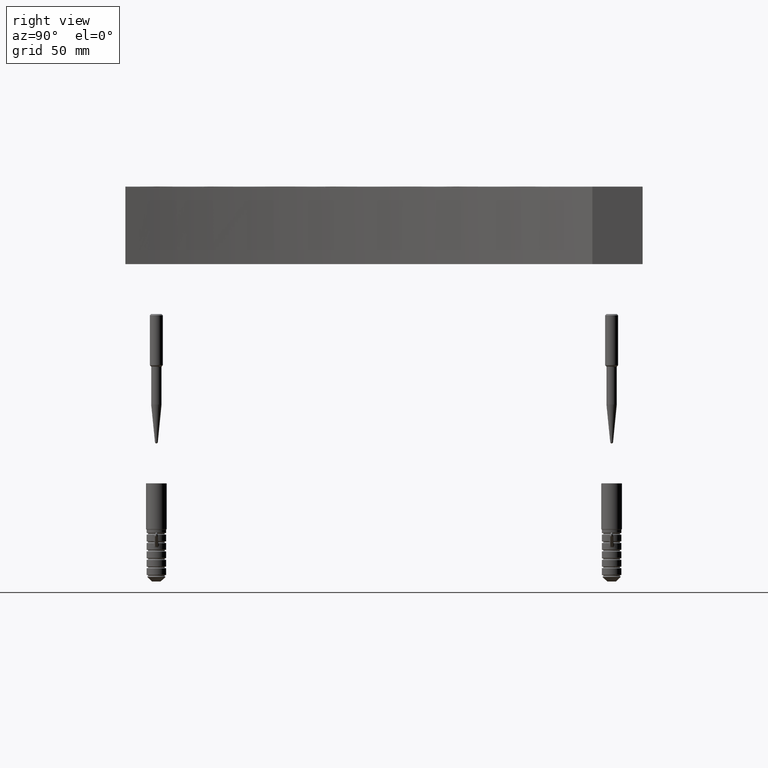
[diagram: clean part render]
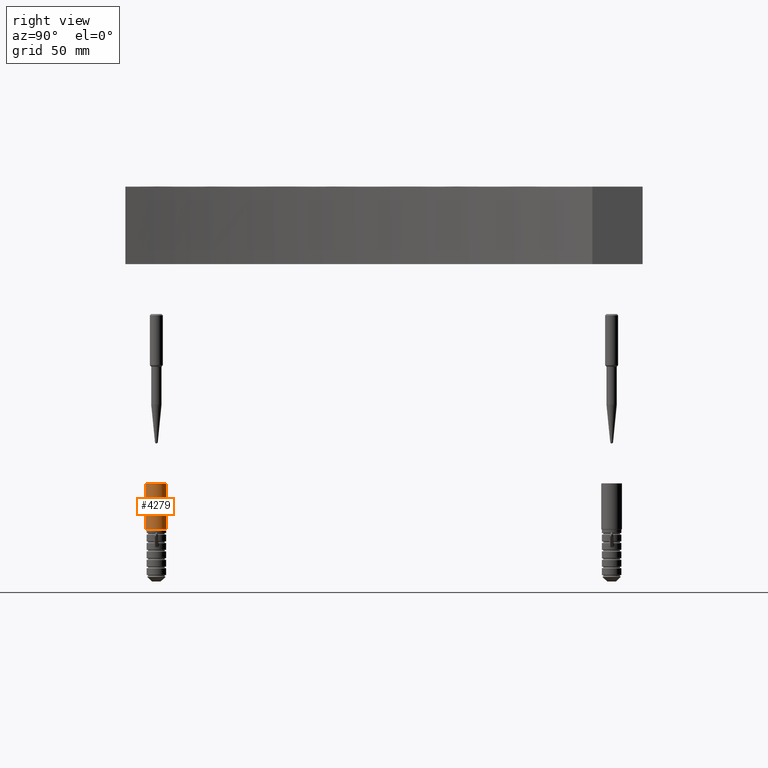
[diagram: same view with one face highlighted and labeled with its STEP entity id]
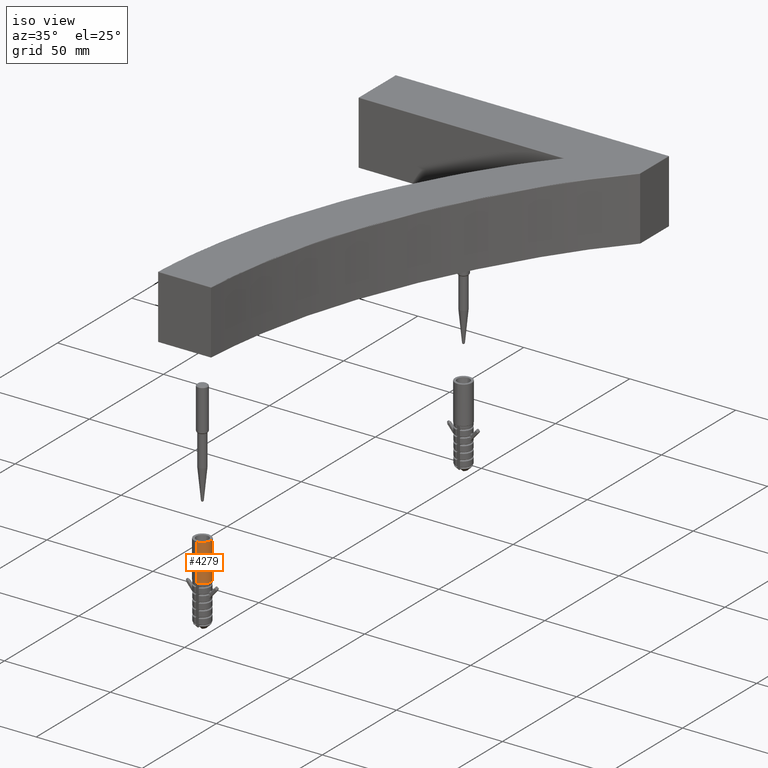
[diagram: same view with one face highlighted and labeled with its STEP entity id]
A machine part, right view. The second image highlights one B-rep face of the part: STEP entity #4279.
A second angle (iso view) of the same face is appended — the face is thin or edge-on in the first view.
In plain terms, the highlighted cylindrical surface (edge-blend (fillet) strip) has radius 4 mm, axis along (-0, 0, -1).
Its self-contained STEP definition (entity closure, byte-faithful):
#624 = AXIS2_PLACEMENT_3D ( 'NONE', #26981, #10246, #8152 ) ;
#2341 = EDGE_CURVE ( 'NONE', #3759, #8454, #17209, .T. ) ;
#2886 = EDGE_LOOP ( 'NONE', ( #12960, #13867, #15719, #15798, #22809, #22437 ) ) ;
#3759 = VERTEX_POINT ( 'NONE', #15975 ) ;
#4279 = ADVANCED_FACE ( 'NONE', ( #12258 ), #25671, .T. ) ;
#4436 = AXIS2_PLACEMENT_3D ( 'NONE', #4528, #19161, #19248 ) ;
#4528 = CARTESIAN_POINT ( 'NONE',  ( 0.0000000000000000000, 0.0000000000000000000, -17.80000000000000100 ) ) ;
#5519 = CARTESIAN_POINT ( 'NONE',  ( 4.000000000000000000, 4.898587196589412800E-016, -17.80000000000000100 ) ) ;
#6099 = CARTESIAN_POINT ( 'NONE',  ( -4.000000000000000000, 0.0000000000000000000, -0.1999999999999987900 ) ) ;
#7099 = CARTESIAN_POINT ( 'NONE',  ( 0.0000000000000000000, 0.0000000000000000000, -0.1999999999999987900 ) ) ;
#8152 = DIRECTION ( 'NONE',  ( -1.000000000000000000, 0.0000000000000000000, 0.0000000000000000000 ) ) ;
#8382 = LINE ( 'NONE', #18265, #26391 ) ;
#8454 = VERTEX_POINT ( 'NONE', #5519 ) ;
#8455 = CIRCLE ( 'NONE', #624, 4.000000000000000000 ) ;
#8668 = VERTEX_POINT ( 'NONE', #22543 ) ;
#10246 = DIRECTION ( 'NONE',  ( -0.0000000000000000000, -0.0000000000000000000, -1.000000000000000000 ) ) ;
#11114 = CARTESIAN_POINT ( 'NONE',  ( 0.0000000000000000000, 0.0000000000000000000, -17.80000000000000100 ) ) ;
#11355 = CIRCLE ( 'NONE', #4436, 4.000000000000000000 ) ;
#11559 = DIRECTION ( 'NONE',  ( 1.000000000000000000, 0.0000000000000000000, 0.0000000000000000000 ) ) ;
#11967 = CARTESIAN_POINT ( 'NONE',  ( 0.0000000000000000000, 0.0000000000000000000, -38.00000000000000000 ) ) ;
#12258 = FACE_OUTER_BOUND ( 'NONE', #2886, .T. ) ;
#12284 = AXIS2_PLACEMENT_3D ( 'NONE', #11114, #21561, #21193 ) ;
#12960 = ORIENTED_EDGE ( 'NONE', *, *, #25336, .T. ) ;
#13867 = ORIENTED_EDGE ( 'NONE', *, *, #25015, .T. ) ;
#14091 = DIRECTION ( 'NONE',  ( -0.0000000000000000000, -0.0000000000000000000, -1.000000000000000000 ) ) ;
#14213 = DIRECTION ( 'NONE',  ( -1.000000000000000000, 0.0000000000000000000, 0.0000000000000000000 ) ) ;
#14913 = LINE ( 'NONE', #26660, #26411 ) ;
#15012 = CARTESIAN_POINT ( 'NONE',  ( -3.879513447468139600, 0.9743589743589747800, -17.80000000000000100 ) ) ;
#15719 = ORIENTED_EDGE ( 'NONE', *, *, #2341, .F. ) ;
#15798 = ORIENTED_EDGE ( 'NONE', *, *, #22779, .F. ) ;
#15975 = CARTESIAN_POINT ( 'NONE',  ( 3.879513447468139200, 0.9743589743589745600, -17.80000000000000100 ) ) ;
#17209 = CIRCLE ( 'NONE', #12284, 4.000000000000000000 ) ;
#18265 = CARTESIAN_POINT ( 'NONE',  ( 4.000000000000000000, 4.898587196589412800E-016, -38.00000000000000000 ) ) ;
#19161 = DIRECTION ( 'NONE',  ( -0.0000000000000000000, -0.0000000000000000000, -1.000000000000000000 ) ) ;
#19248 = DIRECTION ( 'NONE',  ( -1.000000000000000000, 0.0000000000000000000, 0.0000000000000000000 ) ) ;
#19791 = DIRECTION ( 'NONE',  ( -0.0000000000000000000, -0.0000000000000000000, -1.000000000000000000 ) ) ;
#20384 = DIRECTION ( 'NONE',  ( -0.0000000000000000000, -0.0000000000000000000, -1.000000000000000000 ) ) ;
#20473 = CIRCLE ( 'NONE', #22147, 4.000000000000000000 ) ;
#21193 = DIRECTION ( 'NONE',  ( -1.000000000000000000, 0.0000000000000000000, 0.0000000000000000000 ) ) ;
#21253 = CARTESIAN_POINT ( 'NONE',  ( -4.000000000000000000, 0.0000000000000000000, -17.80000000000000100 ) ) ;
#21561 = DIRECTION ( 'NONE',  ( -0.0000000000000000000, -0.0000000000000000000, -1.000000000000000000 ) ) ;
#22147 = AXIS2_PLACEMENT_3D ( 'NONE', #7099, #19791, #11559 ) ;
#22437 = ORIENTED_EDGE ( 'NONE', *, *, #23051, .F. ) ;
#22522 = AXIS2_PLACEMENT_3D ( 'NONE', #11967, #20384, #14213 ) ;
#22543 = CARTESIAN_POINT ( 'NONE',  ( 4.000000000000000000, 4.898587196589412800E-016, -0.1999999999999987900 ) ) ;
#22779 = EDGE_CURVE ( 'NONE', #26587, #3759, #11355, .T. ) ;
#22809 = ORIENTED_EDGE ( 'NONE', *, *, #27118, .F. ) ;
#23051 = EDGE_CURVE ( 'NONE', #24121, #25672, #14913, .T. ) ;
#24121 = VERTEX_POINT ( 'NONE', #6099 ) ;
#24398 = DIRECTION ( 'NONE',  ( -0.0000000000000000000, -0.0000000000000000000, -1.000000000000000000 ) ) ;
#25015 = EDGE_CURVE ( 'NONE', #8668, #8454, #8382, .T. ) ;
#25336 = EDGE_CURVE ( 'NONE', #24121, #8668, #20473, .T. ) ;
#25671 = CYLINDRICAL_SURFACE ( 'NONE', #22522, 4.000000000000000000 ) ;
#25672 = VERTEX_POINT ( 'NONE', #21253 ) ;
#26391 = VECTOR ( 'NONE', #24398, 1000.000000000000000 ) ;
#26411 = VECTOR ( 'NONE', #14091, 1000.000000000000000 ) ;
#26587 = VERTEX_POINT ( 'NONE', #15012 ) ;
#26660 = CARTESIAN_POINT ( 'NONE',  ( -4.000000000000000000, 0.0000000000000000000, -38.00000000000000000 ) ) ;
#26981 = CARTESIAN_POINT ( 'NONE',  ( 0.0000000000000000000, 0.0000000000000000000, -17.80000000000000100 ) ) ;
#27118 = EDGE_CURVE ( 'NONE', #25672, #26587, #8455, .T. ) ;